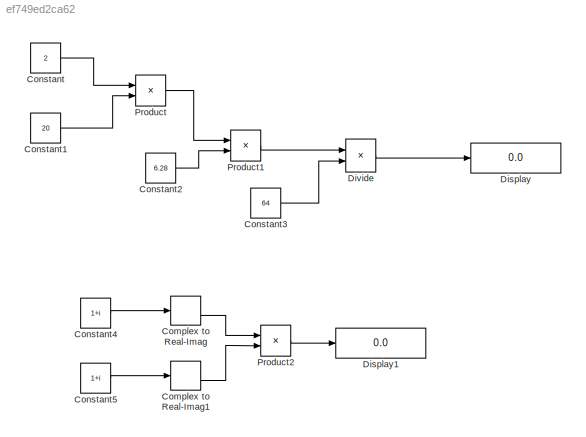
MODEL slx_ef749ed2ca62
KIND model
CONFIG AbsTol = auto
CONFIG EnableMultiTasking = off
CONFIG FixedStep = auto
CONFIG MaxStep = auto
CONFIG MinStep = auto
CONFIG RelTol = 1e-3
CONFIG SampleTimeConstraint = Unconstrained
CONFIG Solver = VariableStepAuto
CONFIG SolverName = VariableStepAuto
CONFIG StartTime = 0.0
CONFIG StopTime = 10.0
BLOCK [ComplexToRealImag] Complex to Real-Imag
  Ports = [1, 2]
BLOCK [ComplexToRealImag] Complex to Real-Imag1
  Ports = [1, 2]
BLOCK [Constant] Constant
  OutDataTypeStr = fixdt(0,16,8)
  SampleTime = 0.1
  Value = 2
BLOCK [Constant] Constant1
  OutDataTypeStr = fixdt(0,16,8)
  SampleTime = 0.1
  Value = 20
BLOCK [Constant] Constant2
  OutDataTypeStr = fixdt(0,8,4)
  OutMax = 6.28
  OutMin = 6.28
  SampleTime = 0.1
  Value = 6.28
BLOCK [Constant] Constant3
  OutDataTypeStr = fixdt(0,8,0)
  SampleTime = 0.1
  Value = 64
BLOCK [Constant] Constant4
  SampleTime = 0.1
  Value = 1+i
BLOCK [Constant] Constant5
  SampleTime = 0.1
  Value = 1+i
BLOCK [Display] Display
  Decimation = 1
  Ports = [1]
BLOCK [Display] Display1
  Decimation = 1
  Ports = [1]
BLOCK [Product] Divide
  InputSameDT = off
  Inputs = */
  OutDataTypeStr = Inherit: Inherit via internal rule
  Ports = [2, 1]
BLOCK [Product] Product
  InputSameDT = off
  OutDataTypeStr = Inherit: Inherit via internal rule
  Ports = [2, 1]
  RndMeth = Floor
  SaturateOnIntegerOverflow = off
BLOCK [Product] Product1
  InputSameDT = off
  OutDataTypeStr = Inherit: Inherit via internal rule
  Ports = [2, 1]
  RndMeth = Floor
  SaturateOnIntegerOverflow = off
BLOCK [Product] Product2
  InputSameDT = off
  OutDataTypeStr = Inherit: Inherit via internal rule
  Ports = [2, 1]
  RndMeth = Floor
  SaturateOnIntegerOverflow = off
LINE Complex to Real-Imag1:2 -> Product2:2
LINE Complex to Real-Imag:2 -> Product2:1
LINE Constant1:1 -> Product:2
LINE Constant2:1 -> Product1:2
LINE Constant3:1 -> Divide:2
LINE Constant4:1 -> Complex to Real-Imag:1
LINE Constant5:1 -> Complex to Real-Imag1:1
LINE Constant:1 -> Product:1
LINE Divide:1 -> Display:1
LINE Product1:1 -> Divide:1
LINE Product2:1 -> Display1:1
LINE Product:1 -> Product1:1
